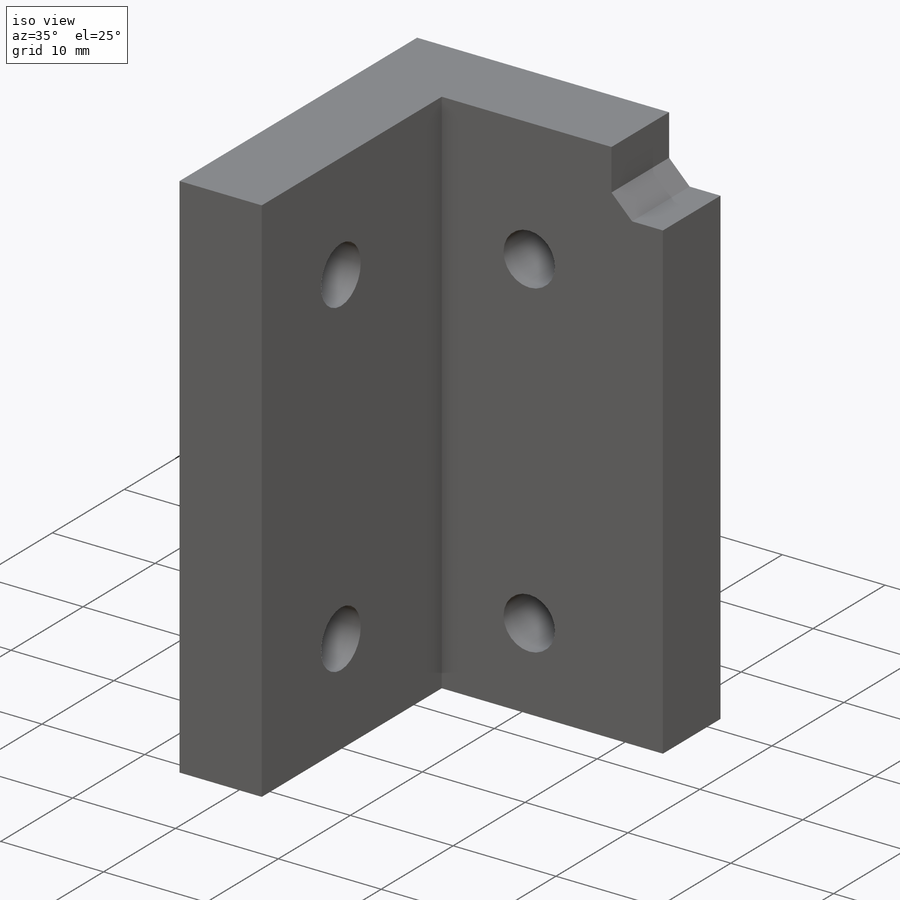
[diagram: iso view]
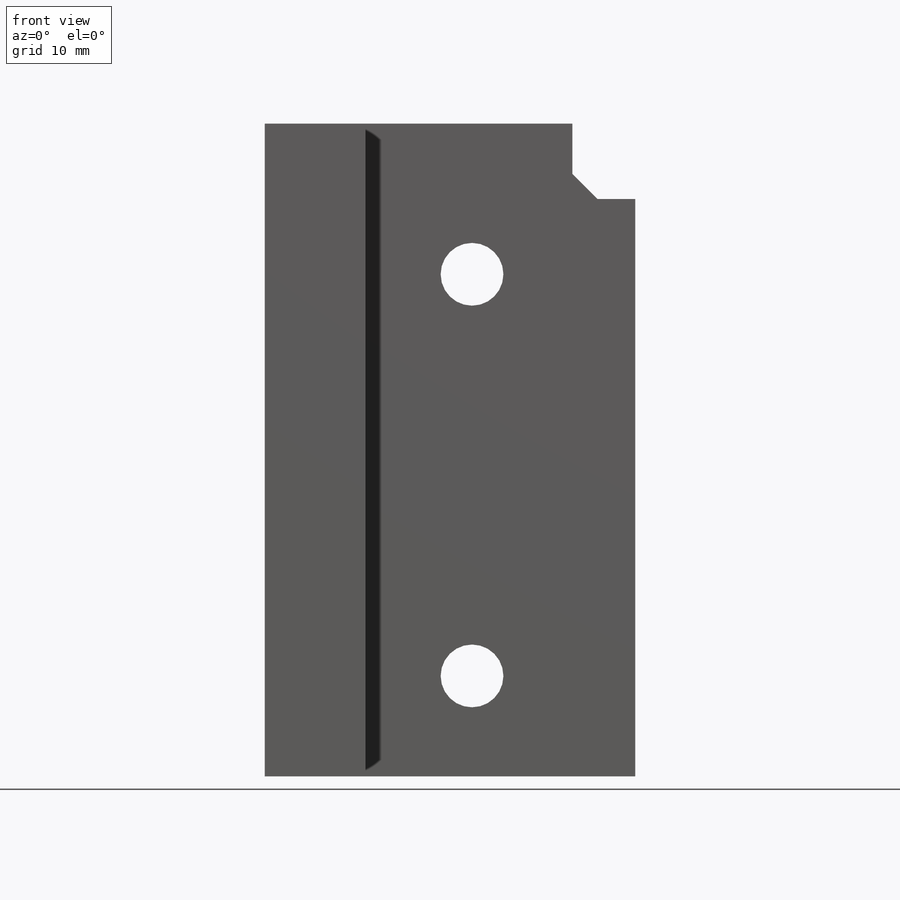
[diagram: front view]
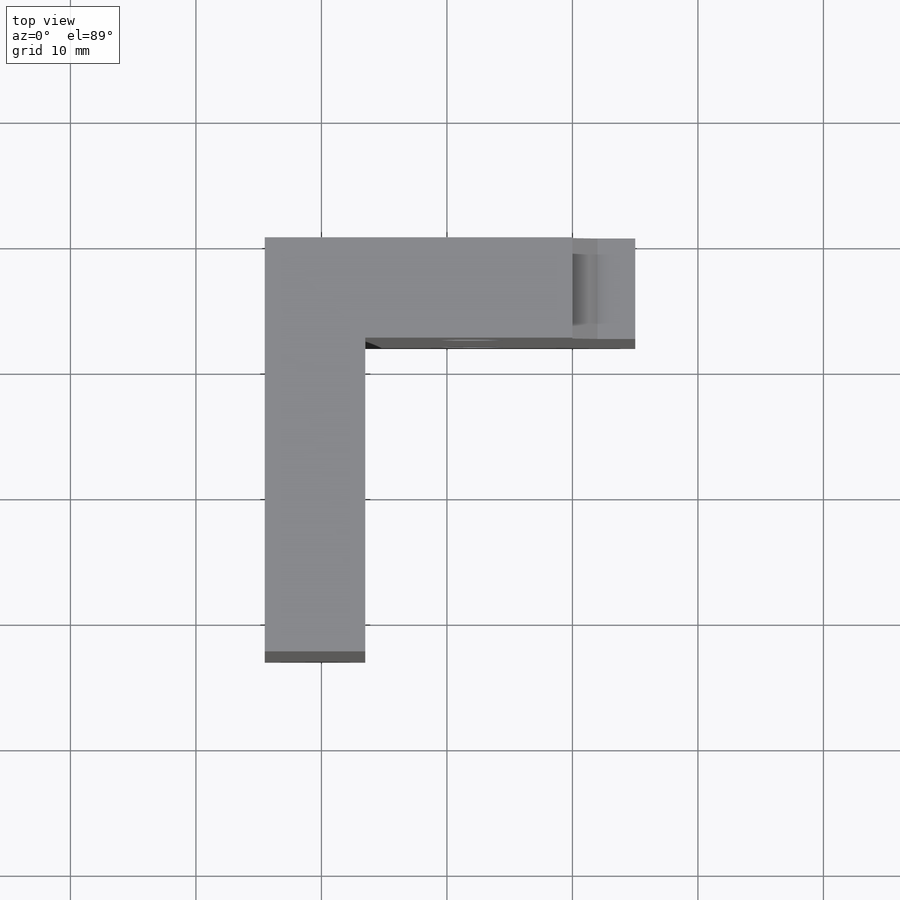
[diagram: top view]
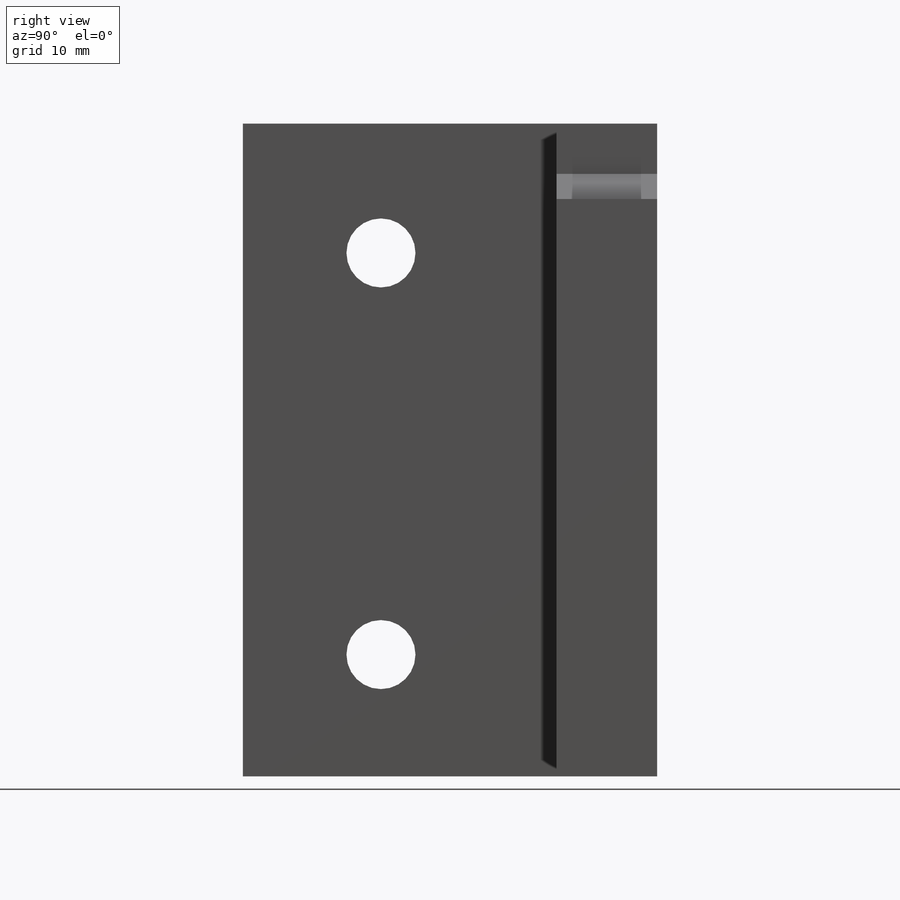
[diagram: right view]
SOLIDWORKS PART (.sldprt)
format: sldprt  version: not decoded by parser v0  size: 398,848 bytes
history: native  units: mm
features: sketch x11, plane x6, extrude x6, cut_extrude x4, mirror x2, chamfer x2, material x1 (+9 scaffold rows collapsed)
feature tree (41):
  scaffold x9  (default folders/planes/origin — collapsed)
  material  "Material <not specified>"
  plane  "Plan de face"
  plane  "Plan de dessus"
  plane  "Plan de droite"
  sketch  "Sketch1"  dims[D1=24.51mm D2=148.0mm]
  extrude  "Boss-Extrude1"  Depth=8mm
  sketch  "Sketch2"  dims[D1=8.0mm]
  extrude  "Boss-Extrude2"  Depth=25mm
  sketch  "Sketch4"  dims[D1=36.8mm D2=20.3mm D3=3.0mm]
  extrude  "Boss-Extrude3"  [1 undecoded]
  sketch  "Sketch5"  dims[D1=6.0mm D2=4.0mm D3=23.0mm D4=6.0mm D5=4.0mm]
  extrude  "Boss-Extrude4"  Depth=25mm
  sketch  "Sketch6"  dims[D1=4.0mm D2=13.7mm]
  cut_extrude  "Cut-Extrude2"  [1 undecoded]
  plane  "Plane1"  Offset=4mm
  sketch  "Sketch8"  dims[c1.D1=5.0mm c2.D1=3.0mm]
  plane  "Plane2"
  mirror  "Mirror1"
  plane  "Plane3"  Offset=7.25mm
  mirror  "Mirror2"
  sketch  "Sketch3"  dims[D1=5.0mm D2=5.0mm D9=5.0mm D10=5.0mm D3=32.0mm D4=8.0mm D5=8.0mm D6=60.0mm D7=32.0mm D8=8.0mm]
  cut_extrude  "Cut-Extrude1"  Depth=10mm
  sketch  "Sketch12"  dims[D1=5.5mm D2=5.5mm D4=5.5mm D5=5.5mm D3=32.0mm D6=65.1mm D7=32.0mm]
  cut_extrude  "Cut-Extrude3"  [1 undecoded]
  sketch  "Sketch13"  dims[D1=5.0mm D2=46.0mm]
  extrude  "Boss-Extrude5"  [1 undecoded]
  sketch  "Sketch14"  dims[D1=3.0mm D2=17.0mm]
  extrude  "Boss-Extrude6"  [1 undecoded]
  chamfer  "Chamfer1"  Distance=2mm Angle=45deg
  chamfer  "Chamfer2"  Distance=6mm Angle=34deg
  sketch  "Sketch15"  dims[D1=96.0mm]
  cut_extrude  "Cut-Extrude4"  Depth=45mm
decode coverage: 18 of 25 modeling features carry decoded parameters
note: 5 parameter values undecoded
summary: no parameter record found for 5 features
note: suppression state not decoded; provenance and decode notes live in map.json
